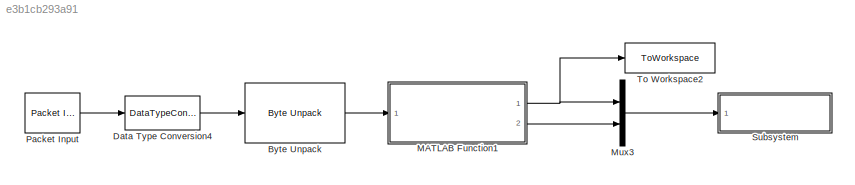
MODEL slx_e3b1cb293a91
KIND model
CONFIG AbsTol = auto
CONFIG EnableMultiTasking = off
CONFIG FixedStep = 0.01
CONFIG MaxStep = auto
CONFIG MinStep = auto
CONFIG RelTol = 1e-3
CONFIG SampleTimeConstraint = Unconstrained
CONFIG SolverName = ode4
CONFIG StartTime = 0.0
CONFIG StopTime = 10
BLOCK [Reference] Byte Unpack  REF=nucleoutilitieslib/Byte Unpack
  Ports = [1, 1]
  SourceBlock = nucleoutilitieslib/Byte Unpack
  SourceProductBaseCode = ANDROID,ARDUINO,ML_ARDUINO,ECCORTEXA,ECCORTEXR,SC_BEAGLEBONE_BLUE,EC_FREEDOM_BOARD,EC_FRDM_K64F,INTEL_BLOCKSET,MICROBIT,NUCLEO,NVIDIA,PX4AUTOPILOTS,RASPPIIO,STMICRODIS,TIC2000,XILINX_BLOCKSET  <repeated x3 — deduplicated; at blocks: Byte Unpack, Byte Pack, Byte Pack1>
  SourceType = Byte Unpack
BLOCK [DataTypeConversion] Data Type Conversion4
  OutDataTypeStr = uint8
  RndMeth = Floor
  SaturateOnIntegerOverflow = off
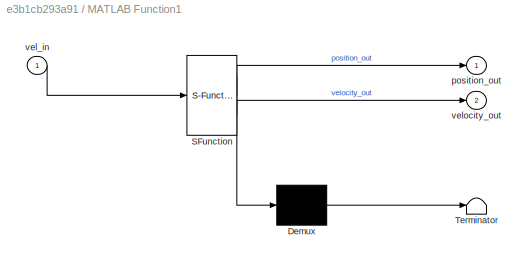
BLOCK [SubSystem] MATLAB Function1
  ErrorFcn = Stateflow.Translate.translate
  PermitHierarchicalResolution = ExplicitOnly
  Ports = [1, 2]
  RequestExecContextInheritance = off
  SFBlockType = MATLAB Function
  TreatAsAtomicUnit = on
BLOCK [Demux] MATLAB Function1/ Demux 
  Outputs = 1
  Ports = [1, 1]
BLOCK [S-Function] MATLAB Function1/ SFunction 
  EnableBusSupport = on
  FunctionName = sf_sfun
  PortCounts = [1 3]
  Ports = [1, 3]
  SFcnIsStateOwnerBlock = off
  SFunctionDeploymentMode = off
  Tag = Stateflow S-Function 1
BLOCK [Terminator] MATLAB Function1/ Terminator 
BLOCK [Outport] MATLAB Function1/position_out
BLOCK [Inport] MATLAB Function1/vel_in
BLOCK [Outport] MATLAB Function1/velocity_out
  Port = 2
BLOCK [Mux] Mux3
  DisplayOption = bar
  Inputs = 2
  Ports = [2, 1]
BLOCK [Reference] Packet Input  REF=sldrtlib/Packet Input
  AttributesFormatString = Serial Port [4]
  Ports = [0, 1]
  SourceBlock = sldrtlib/Packet Input
  SourceProductBaseCode = WT
  SourceType = Simulink Desktop Real-Time Packet Input
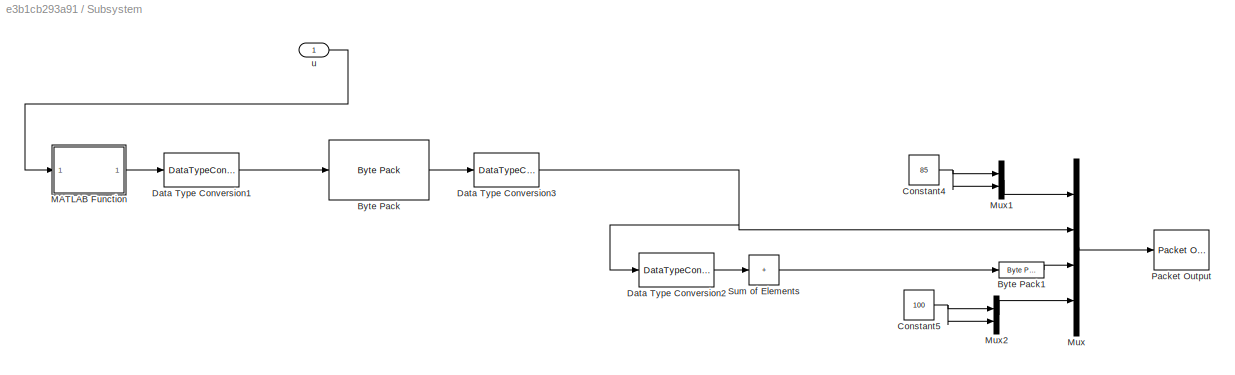
BLOCK [SubSystem] Subsystem
  Ports = [1]
  RequestExecContextInheritance = off
BLOCK [Reference] Subsystem/Byte Pack  REF=svdutilitieslib/Byte Pack
  Ports = [1, 1]
  SourceBlock = svdutilitieslib/Byte Pack
  SourceType = Byte pack
BLOCK [Reference] Subsystem/Byte Pack1  REF=svdutilitieslib/Byte Pack
  Ports = [1, 1]
  SourceBlock = svdutilitieslib/Byte Pack
  SourceType = Byte pack
BLOCK [Constant] Subsystem/Constant4
  OutDataTypeStr = uint8
  Value = 85
BLOCK [Constant] Subsystem/Constant5
  OutDataTypeStr = uint8
  Value = 100
BLOCK [DataTypeConversion] Subsystem/Data Type Conversion1
  OutDataTypeStr = single
  RndMeth = Floor
  SaturateOnIntegerOverflow = off
BLOCK [DataTypeConversion] Subsystem/Data Type Conversion2
  OutDataTypeStr = uint32
  RndMeth = Floor
  SaturateOnIntegerOverflow = off
BLOCK [DataTypeConversion] Subsystem/Data Type Conversion3
  OutDataTypeStr = uint8
  RndMeth = Floor
  SaturateOnIntegerOverflow = off
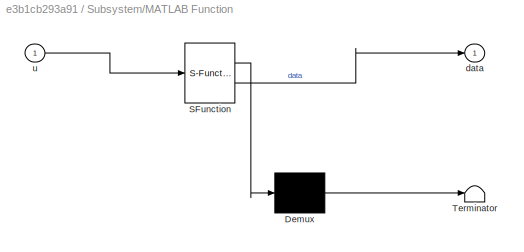
BLOCK [SubSystem] Subsystem/MATLAB Function
  ErrorFcn = Stateflow.Translate.translate
  PermitHierarchicalResolution = ExplicitOnly
  Ports = [1, 1]
  RequestExecContextInheritance = off
  SFBlockType = MATLAB Function
  TreatAsAtomicUnit = on
BLOCK [Demux] Subsystem/MATLAB Function/ Demux 
  Outputs = 1
  Ports = [1, 1]
BLOCK [S-Function] Subsystem/MATLAB Function/ SFunction 
  EnableBusSupport = on
  FunctionName = sf_sfun
  PortCounts = [1 2]
  Ports = [1, 2]
  SFcnIsStateOwnerBlock = off
  SFunctionDeploymentMode = off
  Tag = Stateflow S-Function 2
BLOCK [Terminator] Subsystem/MATLAB Function/ Terminator 
BLOCK [Outport] Subsystem/MATLAB Function/data
BLOCK [Inport] Subsystem/MATLAB Function/u
BLOCK [Mux] Subsystem/Mux
  DisplayOption = bar
  Ports = [4, 1]
BLOCK [Mux] Subsystem/Mux1
  DisplayOption = bar
  Inputs = 2
  Ports = [2, 1]
BLOCK [Mux] Subsystem/Mux2
  DisplayOption = bar
  Inputs = 2
  Ports = [2, 1]
BLOCK [Reference] Subsystem/Packet Output  REF=sldrtlib/Packet Output
  AttributesFormatString = Serial Port [4]
  Ports = [1]
  SourceBlock = sldrtlib/Packet Output
  SourceProductBaseCode = WT
  SourceType = Simulink Desktop Real-Time Packet Output
BLOCK [Sum] Subsystem/Sum of Elements
  IconShape = rectangular
  Inputs = +
  Ports = [1, 1]
BLOCK [Inport] Subsystem/u
BLOCK [ToWorkspace] To Workspace2
  ExtModeLoggingTrig = on
  FixptAsFi = on
  MaxDataPoints = inf
  Ports = [1]
  SampleTime = -1
  Save2DSignal = 2-D array (concatenate along first dimension)
  VariableName = x
LINE Byte Unpack:1 -> MATLAB Function1:1
LINE Data Type Conversion4:1 -> Byte Unpack:1
NET MATLAB Function1:1 -> Mux3:1, To Workspace2:1
LINE MATLAB Function1:2 -> Mux3:2
LINE Mux3:1 -> Subsystem:1
LINE Packet Input:1 -> Data Type Conversion4:1
LINE Subsystem/Byte Pack1:1 -> Subsystem/Mux:3
LINE Subsystem/Byte Pack:1 -> Subsystem/Data Type Conversion3:1
NET Subsystem/Constant4:1 -> Subsystem/Mux1:1, Subsystem/Mux1:2
NET Subsystem/Constant5:1 -> Subsystem/Mux2:1, Subsystem/Mux2:2
LINE Subsystem/Data Type Conversion1:1 -> Subsystem/Byte Pack:1
LINE Subsystem/Data Type Conversion2:1 -> Subsystem/Sum of Elements:1
NET Subsystem/Data Type Conversion3:1 -> Subsystem/Data Type Conversion2:1, Subsystem/Mux:2
LINE Subsystem/MATLAB Function:1 -> Subsystem/Data Type Conversion1:1
LINE Subsystem/Mux1:1 -> Subsystem/Mux:1
LINE Subsystem/Mux2:1 -> Subsystem/Mux:4
LINE Subsystem/Mux:1 -> Subsystem/Packet Output:1
LINE Subsystem/Sum of Elements:1 -> Subsystem/Byte Pack1:1
LINE Subsystem/u:1 -> Subsystem/MATLAB Function:1
note: NET lines group one-source signal fan-out (src -> all destinations, sorted); 1:1 wires keep LINE
CHART MATLAB Function1 states=1 transitions=1
  STATE_LABEL 'eML_blk_kernel()'
  STATE_LABEL 'SCRIPT:\nfunction [position_out, velocity_out] = fcn(vel_in)\n\n%%%%%%%% main Vasarhelyi Guidance Law %%%%%%%%\n\n%% parameters %%\n% x_arena: arena limits\nx_arena = [-100, 100; ... % x wall\n    -100, 100]; % y_wall\n% spheres: obstacles\nspheres = [0, 50, -50; 0, 10, 20; 5, 10, 2]; % x y radius\n% agent_number: number of agents\nagent_number = 20;\n% Max radius of influence - Metric distance\nradius = 20;\n% ...<+3608ch>'
CHART Subsystem/MATLAB Function states=1 transitions=1
  STATE_LABEL 'eML_blk_kernel()'
  STATE_LABEL 'SCRIPT:\nfunction data = fcn(u)\npersistent iteration\nif isempty(iteration)\n    iteration = 0;\nend\ndata = zeros(1, 6);\nfor i = 1:6\n    iteration = iteration + 1;\n    data(i) = u(iteration);\n    if iteration >= length(u)\n        iteration = 0;\n    end\nend\n\n'
CHART  states=0 transitions=0
CHART  states=0 transitions=0
